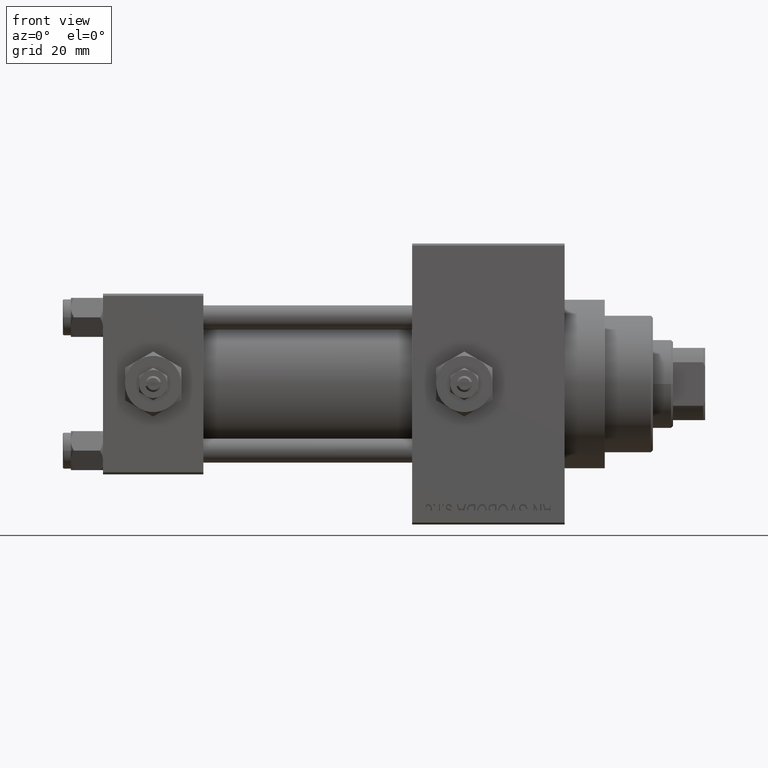
[diagram: clean part render]
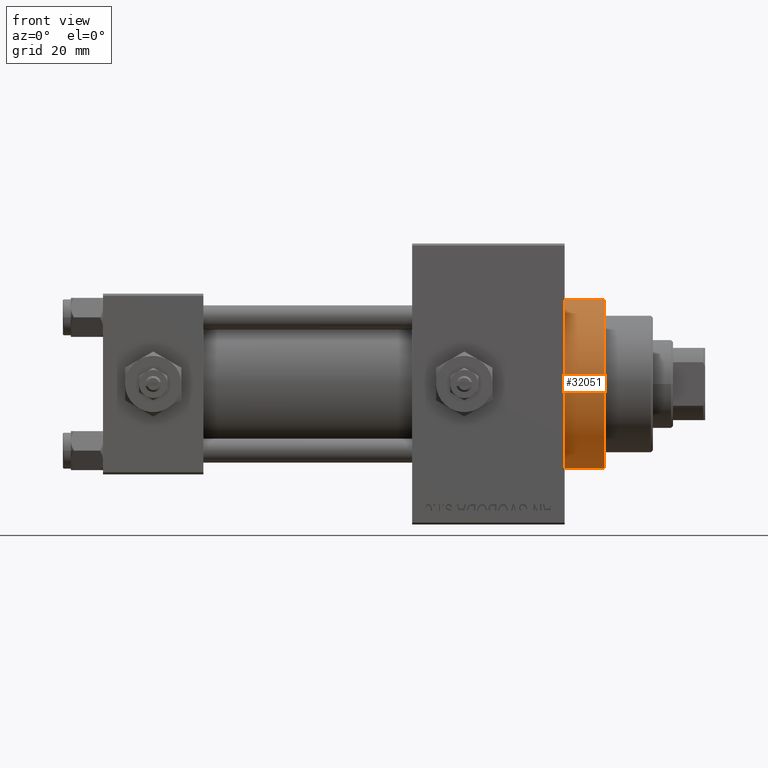
[diagram: same view with one face highlighted and labeled with its STEP entity id]
A machine part, front view. The second image highlights one B-rep face of the part: STEP entity #32051.
In plain terms, the highlighted cylindrical surface (partial cylindrical patch) has radius 21 mm, axis along (-1, -0, -0).
Its self-contained STEP definition (entity closure, byte-faithful):
#315 = CIRCLE ( 'NONE', #6650, 21.00000000000000000 ) ;
#1042 = CARTESIAN_POINT ( 'NONE',  ( 124.9999999999999858, 0.000000000000000000, 0.000000000000000000 ) ) ;
#1271 = FACE_OUTER_BOUND ( 'NONE', #24746, .T. ) ;
#3831 = LINE ( 'NONE', #38082, #9393 ) ;
#5239 = DIRECTION ( 'NONE',  ( 0.000000000000000000, 0.000000000000000000, 1.000000000000000000 ) ) ;
#6391 = VERTEX_POINT ( 'NONE', #24502 ) ;
#6650 = AXIS2_PLACEMENT_3D ( 'NONE', #38565, #38807, #42055 ) ;
#6967 = EDGE_CURVE ( 'NONE', #41866, #6391, #315, .T. ) ;
#8160 = VERTEX_POINT ( 'NONE', #40209 ) ;
#8965 = DIRECTION ( 'NONE',  ( -1.000000000000000000, -0.000000000000000000, -0.000000000000000000 ) ) ;
#9393 = VECTOR ( 'NONE', #18979, 1000.000000000000000 ) ;
#11732 = DIRECTION ( 'NONE',  ( 1.000000000000000000, 0.000000000000000000, 0.000000000000000000 ) ) ;
#16418 = CYLINDRICAL_SURFACE ( 'NONE', #46531, 21.00000000000000000 ) ;
#17452 = CARTESIAN_POINT ( 'NONE',  ( 124.9999999999999858, 0.000000000000000000, 21.00000000000000000 ) ) ;
#17590 = ORIENTED_EDGE ( 'NONE', *, *, #47277, .T. ) ;
#18979 = DIRECTION ( 'NONE',  ( -1.000000000000000000, -0.000000000000000000, -0.000000000000000000 ) ) ;
#19133 = AXIS2_PLACEMENT_3D ( 'NONE', #1042, #11732, #27362 ) ;
#21353 = ORIENTED_EDGE ( 'NONE', *, *, #26347, .F. ) ;
#24502 = CARTESIAN_POINT ( 'NONE',  ( 114.9999999999999858, 2.571758278209441661E-15, -21.00000000000000000 ) ) ;
#24648 = LINE ( 'NONE', #17452, #42984 ) ;
#24746 = EDGE_LOOP ( 'NONE', ( #35203, #21353, #17590, #27320 ) ) ;
#25371 = DIRECTION ( 'NONE',  ( -1.000000000000000000, -0.000000000000000000, -0.000000000000000000 ) ) ;
#26347 = EDGE_CURVE ( 'NONE', #8160, #44655, #30996, .T. ) ;
#27320 = ORIENTED_EDGE ( 'NONE', *, *, #6967, .T. ) ;
#27362 = DIRECTION ( 'NONE',  ( 0.000000000000000000, 0.000000000000000000, -1.000000000000000000 ) ) ;
#27839 = CARTESIAN_POINT ( 'NONE',  ( 124.9999999999999858, 0.000000000000000000, 0.000000000000000000 ) ) ;
#30236 = CARTESIAN_POINT ( 'NONE',  ( 124.9999999999999858, 2.571758278209441661E-15, -21.00000000000000000 ) ) ;
#30996 = CIRCLE ( 'NONE', #19133, 21.00000000000000000 ) ;
#32051 = ADVANCED_FACE ( 'NONE', ( #1271 ), #16418, .T. ) ;
#35203 = ORIENTED_EDGE ( 'NONE', *, *, #37581, .F. ) ;
#37499 = CARTESIAN_POINT ( 'NONE',  ( 114.9999999999999858, 0.000000000000000000, 21.00000000000000000 ) ) ;
#37581 = EDGE_CURVE ( 'NONE', #44655, #6391, #3831, .T. ) ;
#38082 = CARTESIAN_POINT ( 'NONE',  ( 124.9999999999999858, 2.571758278209441661E-15, -21.00000000000000000 ) ) ;
#38565 = CARTESIAN_POINT ( 'NONE',  ( 114.9999999999999858, 0.000000000000000000, 0.000000000000000000 ) ) ;
#38807 = DIRECTION ( 'NONE',  ( 1.000000000000000000, 0.000000000000000000, 0.000000000000000000 ) ) ;
#40209 = CARTESIAN_POINT ( 'NONE',  ( 124.9999999999999858, 0.000000000000000000, 21.00000000000000000 ) ) ;
#41866 = VERTEX_POINT ( 'NONE', #37499 ) ;
#42055 = DIRECTION ( 'NONE',  ( 0.000000000000000000, 0.000000000000000000, -1.000000000000000000 ) ) ;
#42984 = VECTOR ( 'NONE', #25371, 1000.000000000000000 ) ;
#44655 = VERTEX_POINT ( 'NONE', #30236 ) ;
#46531 = AXIS2_PLACEMENT_3D ( 'NONE', #27839, #8965, #5239 ) ;
#47277 = EDGE_CURVE ( 'NONE', #8160, #41866, #24648, .T. ) ;